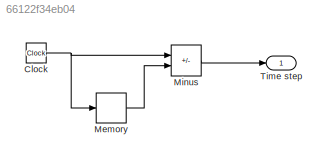
MODEL slx_66122f34eb04
KIND model
CONFIG AbsTol = auto
CONFIG EnableMultiTasking = off
CONFIG FixedStep = auto
CONFIG MaxStep = auto
CONFIG MinStep = auto
CONFIG RelTol = 1e-3
CONFIG SampleTimeConstraint = Unconstrained
CONFIG SolverName = VariableStepAuto
CONFIG StartTime = 0.0
CONFIG StopTime = 10.0
BLOCK [Clock] Clock
BLOCK [Memory] Memory
BLOCK [Sum] Minus
  IconShape = rectangular
  Inputs = +-
BLOCK [Outport] Time step
NET Clock:1 -> Memory:1, Minus:1
LINE Memory:1 -> Minus:2
LINE Minus:1 -> Time step:1
note: NET lines group one-source signal fan-out (src -> all destinations, sorted); 1:1 wires keep LINE
